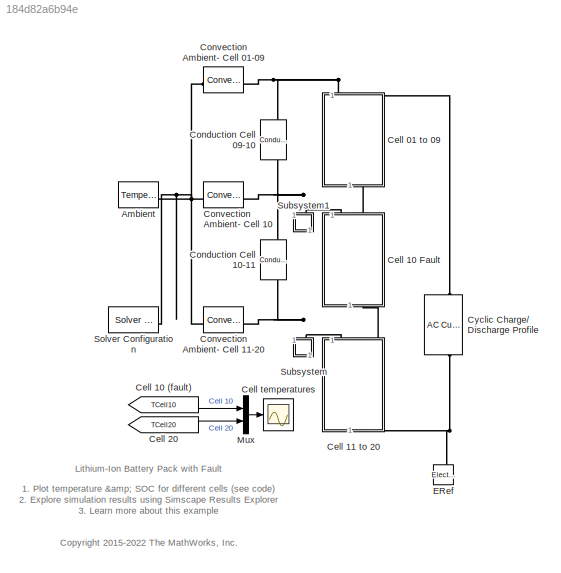
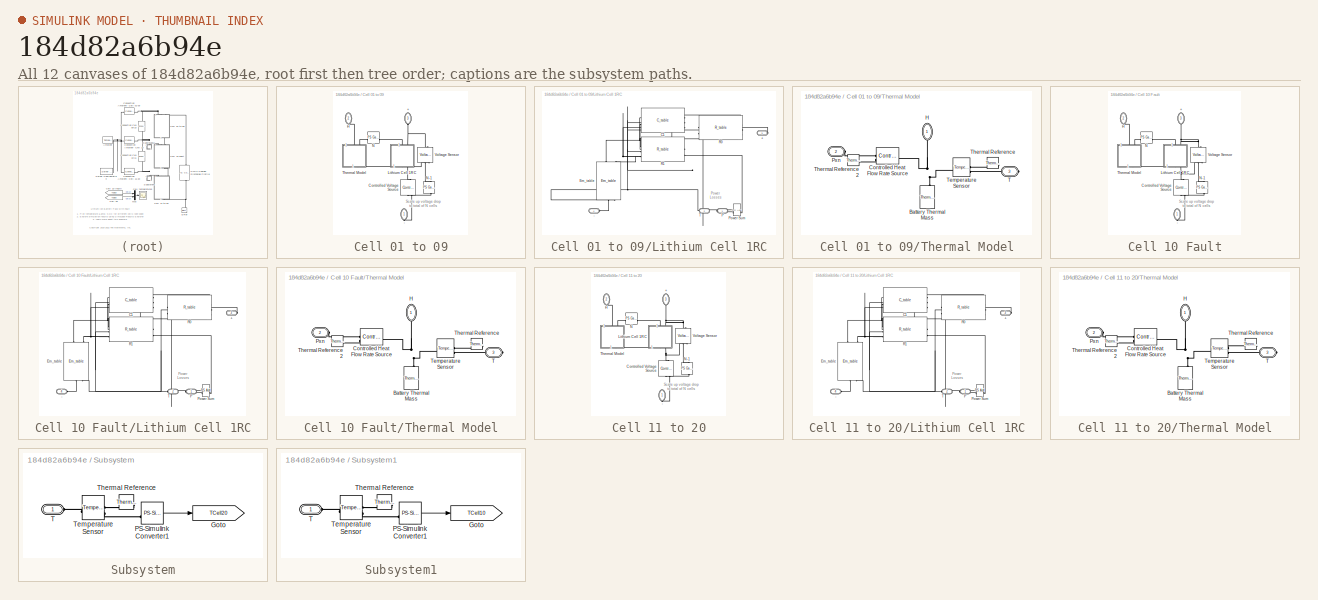
[diagram: thumbnail index - all 12 canvases of the model, root first then tree order]
MODEL slx_184d82a6b94e
KIND model
CONFIG AbsTol = 1e-3
CONFIG EnableMultiTasking = on
CONFIG FixedStep = auto
CONFIG MaxStep = 10
CONFIG MinStep = auto
CONFIG PreLoadFcn = LithiumBatteryCellOneRCBranchEquivalentCircuitINI
CONFIG RelTol = 1e-3
CONFIG SampleTimeConstraint = Unconstrained
CONFIG SolverName = VariableStepAuto
CONFIG StartTime = 0.0
CONFIG StopTime = 7200
BLOCK [Reference] Ambient  REF=fl_lib/Thermal/Thermal Sources/Temperature Source
  SourceBlock = fl_lib/Thermal/Thermal Sources/Temperature Source
  SourceType = Temperature Source
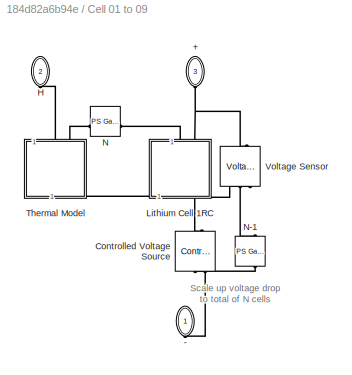
BLOCK [SubSystem] Cell 01 to 09
  NameLocation = right
  Tag = PublishSubsystem
BLOCK [PMIOPort] Cell 01 to 09/+
  NameLocation = left
  Port = 3
  Side = Left
  Tag = PMCPort
BLOCK [PMIOPort] Cell 01 to 09/-
  NameLocation = left
  Side = Right
  Tag = PMCPort
BLOCK [Reference] Cell 01 to 09/Controlled Voltage Source  REF=fl_lib/Electrical/Electrical Sources/Controlled Voltage
Source
  NameLocation = left
  SourceBlock = fl_lib/Electrical/Electrical Sources/Controlled Voltage\nSource
  SourceType = Controlled Voltage\nSource
BLOCK [PMIOPort] Cell 01 to 09/H
  NameLocation = left
  Port = 2
  Side = Left
  Tag = PMCPort
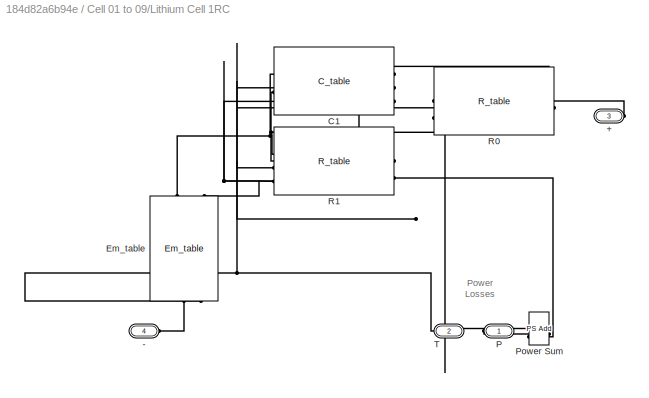
BLOCK [SubSystem] Cell 01 to 09/Lithium Cell 1RC
  NameLocation = left
  Tag = PublishSubsystem
BLOCK [PMIOPort] Cell 01 to 09/Lithium Cell 1RC/+
  Port = 3
  Side = Right
BLOCK [PMIOPort] Cell 01 to 09/Lithium Cell 1RC/-
  NameLocation = top
  Port = 4
  Side = Left
BLOCK [Reference] Cell 01 to 09/Lithium Cell 1RC/C1  REF=LiBatteryElements_lib/C_table
  NameLocation = top
  SourceBlock = LiBatteryElements_lib/C_table
  SourceType = C_table
BLOCK [Reference] Cell 01 to 09/Lithium Cell 1RC/Em_table  REF=LiBatteryElements_lib/Em_table
  NameLocation = right
  SourceBlock = LiBatteryElements_lib/Em_table
  SourceType = Em_table
BLOCK [PMIOPort] Cell 01 to 09/Lithium Cell 1RC/P
  Side = Right
BLOCK [Reference] Cell 01 to 09/Lithium Cell 1RC/Power Sum  REF=fl_lib/Physical Signals/Functions/PS Add
  NameLocation = top
  SourceBlock = fl_lib/Physical Signals/Functions/PS Add
  SourceType = PS Add
BLOCK [Reference] Cell 01 to 09/Lithium Cell 1RC/R0  REF=LiBatteryElements_lib/R_table
  SourceBlock = LiBatteryElements_lib/R_table
  SourceType = R_table
BLOCK [Reference] Cell 01 to 09/Lithium Cell 1RC/R1  REF=LiBatteryElements_lib/R_table
  SourceBlock = LiBatteryElements_lib/R_table
  SourceType = R_table
BLOCK [PMIOPort] Cell 01 to 09/Lithium Cell 1RC/T
  Port = 2
  Side = Left
BLOCK [Reference] Cell 01 to 09/N  REF=fl_lib/Physical Signals/Functions/PS Gain
  NameLocation = top
  SourceBlock = fl_lib/Physical Signals/Functions/PS Gain
  SourceType = PS Gain
BLOCK [Reference] Cell 01 to 09/N-1  REF=fl_lib/Physical Signals/Functions/PS Gain
  NameLocation = right
  SourceBlock = fl_lib/Physical Signals/Functions/PS Gain
  SourceType = PS Gain
BLOCK [SubSystem] Cell 01 to 09/Thermal Model
  NameLocation = left
BLOCK [Reference] Cell 01 to 09/Thermal Model/Battery Thermal Mass  REF=fl_lib/Thermal/Thermal Elements/Thermal Mass
  NameLocation = right
  SourceBlock = fl_lib/Thermal/Thermal Elements/Thermal Mass
  SourceType = Thermal Mass
BLOCK [Reference] Cell 01 to 09/Thermal Model/Controlled Heat Flow Rate Source  REF=fl_lib/Thermal/Thermal Sources/Controlled Heat Flow
Rate Source
  SourceBlock = fl_lib/Thermal/Thermal Sources/Controlled Heat Flow\nRate Source
  SourceType = Controlled Heat Flow\nRate Source
BLOCK [PMIOPort] Cell 01 to 09/Thermal Model/H
  NameLocation = left
  Side = Left
  Tag = PMCPort
BLOCK [PMIOPort] Cell 01 to 09/Thermal Model/Pxn
  NameLocation = top
  Port = 2
  Side = Left
  Tag = PMCPort
BLOCK [PMIOPort] Cell 01 to 09/Thermal Model/T
  Port = 3
  Side = Right
  Tag = PMCPort
BLOCK [Reference] Cell 01 to 09/Thermal Model/Temperature Sensor  REF=fl_lib/Thermal/Thermal Sensors/Temperature Sensor
  SourceBlock = fl_lib/Thermal/Thermal Sensors/Temperature Sensor
  SourceType = Temperature Sensor
BLOCK [Reference] Cell 01 to 09/Thermal Model/Thermal Reference  REF=fl_lib/Thermal/Thermal Elements/Thermal Reference
  NameLocation = top
  SourceBlock = fl_lib/Thermal/Thermal Elements/Thermal Reference
  SourceType = Thermal Reference
BLOCK [Reference] Cell 01 to 09/Thermal Model/Thermal Reference2  REF=fl_lib/Thermal/Thermal Elements/Thermal Reference
  SourceBlock = fl_lib/Thermal/Thermal Elements/Thermal Reference
  SourceType = Thermal Reference
BLOCK [Reference] Cell 01 to 09/Voltage Sensor  REF=fl_lib/Electrical/Electrical Sensors/Voltage Sensor
  NameLocation = right
  SourceBlock = fl_lib/Electrical/Electrical Sensors/Voltage Sensor
  SourceType = Voltage Sensor
BLOCK [From] Cell 10 (fault)
  GotoTag = TCell10
  NameLocation = top
  TagVisibility = global
BLOCK [SubSystem] Cell 10 Fault
  NameLocation = right
BLOCK [PMIOPort] Cell 10 Fault/+
  NameLocation = left
  Port = 3
  Side = Left
  Tag = PMCPort
BLOCK [PMIOPort] Cell 10 Fault/-
  NameLocation = left
  Side = Right
  Tag = PMCPort
BLOCK [Reference] Cell 10 Fault/Controlled Voltage Source  REF=fl_lib/Electrical/Electrical Sources/Controlled Voltage
Source
  NameLocation = left
  SourceBlock = fl_lib/Electrical/Electrical Sources/Controlled Voltage\nSource
  SourceType = Controlled Voltage\nSource
BLOCK [PMIOPort] Cell 10 Fault/H
  NameLocation = left
  Port = 2
  Side = Left
  Tag = PMCPort
BLOCK [SubSystem] Cell 10 Fault/Lithium Cell 1RC
  NameLocation = left
BLOCK [PMIOPort] Cell 10 Fault/Lithium Cell 1RC/+
  Port = 3
  Side = Right
BLOCK [PMIOPort] Cell 10 Fault/Lithium Cell 1RC/-
  NameLocation = top
  Port = 4
  Side = Left
BLOCK [Reference] Cell 10 Fault/Lithium Cell 1RC/C1  REF=LiBatteryElements_lib/C_table
  NameLocation = top
  SourceBlock = LiBatteryElements_lib/C_table
  SourceType = C_table
BLOCK [Reference] Cell 10 Fault/Lithium Cell 1RC/Em_table  REF=LiBatteryElements_lib/Em_table
  NameLocation = right
  SourceBlock = LiBatteryElements_lib/Em_table
  SourceType = Em_table
BLOCK [PMIOPort] Cell 10 Fault/Lithium Cell 1RC/P
  Side = Right
BLOCK [Reference] Cell 10 Fault/Lithium Cell 1RC/Power Sum  REF=fl_lib/Physical Signals/Functions/PS Add
  NameLocation = top
  SourceBlock = fl_lib/Physical Signals/Functions/PS Add
  SourceType = PS Add
BLOCK [Reference] Cell 10 Fault/Lithium Cell 1RC/R0  REF=LiBatteryElements_lib/R_table
  SourceBlock = LiBatteryElements_lib/R_table
  SourceType = R_table
BLOCK [Reference] Cell 10 Fault/Lithium Cell 1RC/R1  REF=LiBatteryElements_lib/R_table
  SourceBlock = LiBatteryElements_lib/R_table
  SourceType = R_table
BLOCK [PMIOPort] Cell 10 Fault/Lithium Cell 1RC/T
  Port = 2
  Side = Left
BLOCK [Reference] Cell 10 Fault/N  REF=fl_lib/Physical Signals/Functions/PS Gain
  NameLocation = top
  SourceBlock = fl_lib/Physical Signals/Functions/PS Gain
  SourceType = PS Gain
BLOCK [Reference] Cell 10 Fault/N-1  REF=fl_lib/Physical Signals/Functions/PS Gain
  NameLocation = right
  SourceBlock = fl_lib/Physical Signals/Functions/PS Gain
  SourceType = PS Gain
BLOCK [SubSystem] Cell 10 Fault/Thermal Model
  NameLocation = left
BLOCK [Reference] Cell 10 Fault/Thermal Model/Battery Thermal Mass  REF=fl_lib/Thermal/Thermal Elements/Thermal Mass
  NameLocation = right
  SourceBlock = fl_lib/Thermal/Thermal Elements/Thermal Mass
  SourceType = Thermal Mass
BLOCK [Reference] Cell 10 Fault/Thermal Model/Controlled Heat Flow Rate Source  REF=fl_lib/Thermal/Thermal Sources/Controlled Heat Flow
Rate Source
  SourceBlock = fl_lib/Thermal/Thermal Sources/Controlled Heat Flow\nRate Source
  SourceType = Controlled Heat Flow\nRate Source
BLOCK [PMIOPort] Cell 10 Fault/Thermal Model/H
  NameLocation = left
  Side = Left
  Tag = PMCPort
BLOCK [PMIOPort] Cell 10 Fault/Thermal Model/Pxn
  NameLocation = top
  Port = 2
  Side = Left
  Tag = PMCPort
BLOCK [PMIOPort] Cell 10 Fault/Thermal Model/T
  Port = 3
  Side = Right
  Tag = PMCPort
BLOCK [Reference] Cell 10 Fault/Thermal Model/Temperature Sensor  REF=fl_lib/Thermal/Thermal Sensors/Temperature Sensor
  SourceBlock = fl_lib/Thermal/Thermal Sensors/Temperature Sensor
  SourceType = Temperature Sensor
BLOCK [Reference] Cell 10 Fault/Thermal Model/Thermal Reference  REF=fl_lib/Thermal/Thermal Elements/Thermal Reference
  NameLocation = top
  SourceBlock = fl_lib/Thermal/Thermal Elements/Thermal Reference
  SourceType = Thermal Reference
BLOCK [Reference] Cell 10 Fault/Thermal Model/Thermal Reference2  REF=fl_lib/Thermal/Thermal Elements/Thermal Reference
  SourceBlock = fl_lib/Thermal/Thermal Elements/Thermal Reference
  SourceType = Thermal Reference
BLOCK [Reference] Cell 10 Fault/Voltage Sensor  REF=fl_lib/Electrical/Electrical Sensors/Voltage Sensor
  NameLocation = right
  SourceBlock = fl_lib/Electrical/Electrical Sensors/Voltage Sensor
  SourceType = Voltage Sensor
BLOCK [SubSystem] Cell 11 to 20
  NameLocation = right
BLOCK [PMIOPort] Cell 11 to 20/+
  NameLocation = left
  Port = 3
  Side = Left
  Tag = PMCPort
BLOCK [PMIOPort] Cell 11 to 20/-
  NameLocation = left
  Side = Right
  Tag = PMCPort
BLOCK [Reference] Cell 11 to 20/Controlled Voltage Source  REF=fl_lib/Electrical/Electrical Sources/Controlled Voltage
Source
  NameLocation = left
  SourceBlock = fl_lib/Electrical/Electrical Sources/Controlled Voltage\nSource
  SourceType = Controlled Voltage\nSource
BLOCK [PMIOPort] Cell 11 to 20/H
  NameLocation = left
  Port = 2
  Side = Left
  Tag = PMCPort
BLOCK [SubSystem] Cell 11 to 20/Lithium Cell 1RC
  NameLocation = left
BLOCK [PMIOPort] Cell 11 to 20/Lithium Cell 1RC/+
  Port = 3
  Side = Right
BLOCK [PMIOPort] Cell 11 to 20/Lithium Cell 1RC/-
  NameLocation = top
  Port = 4
  Side = Left
BLOCK [Reference] Cell 11 to 20/Lithium Cell 1RC/C1  REF=LiBatteryElements_lib/C_table
  NameLocation = top
  SourceBlock = LiBatteryElements_lib/C_table
  SourceType = C_table
BLOCK [Reference] Cell 11 to 20/Lithium Cell 1RC/Em_table  REF=LiBatteryElements_lib/Em_table
  NameLocation = right
  SourceBlock = LiBatteryElements_lib/Em_table
  SourceType = Em_table
BLOCK [PMIOPort] Cell 11 to 20/Lithium Cell 1RC/P
  Side = Right
BLOCK [Reference] Cell 11 to 20/Lithium Cell 1RC/Power Sum  REF=fl_lib/Physical Signals/Functions/PS Add
  NameLocation = top
  SourceBlock = fl_lib/Physical Signals/Functions/PS Add
  SourceType = PS Add
BLOCK [Reference] Cell 11 to 20/Lithium Cell 1RC/R0  REF=LiBatteryElements_lib/R_table
  SourceBlock = LiBatteryElements_lib/R_table
  SourceType = R_table
BLOCK [Reference] Cell 11 to 20/Lithium Cell 1RC/R1  REF=LiBatteryElements_lib/R_table
  SourceBlock = LiBatteryElements_lib/R_table
  SourceType = R_table
BLOCK [PMIOPort] Cell 11 to 20/Lithium Cell 1RC/T
  Port = 2
  Side = Left
BLOCK [Reference] Cell 11 to 20/N  REF=fl_lib/Physical Signals/Functions/PS Gain
  NameLocation = top
  SourceBlock = fl_lib/Physical Signals/Functions/PS Gain
  SourceType = PS Gain
BLOCK [Reference] Cell 11 to 20/N-1  REF=fl_lib/Physical Signals/Functions/PS Gain
  NameLocation = right
  SourceBlock = fl_lib/Physical Signals/Functions/PS Gain
  SourceType = PS Gain
BLOCK [SubSystem] Cell 11 to 20/Thermal Model
  NameLocation = left
BLOCK [Reference] Cell 11 to 20/Thermal Model/Battery Thermal Mass  REF=fl_lib/Thermal/Thermal Elements/Thermal Mass
  NameLocation = right
  SourceBlock = fl_lib/Thermal/Thermal Elements/Thermal Mass
  SourceType = Thermal Mass
BLOCK [Reference] Cell 11 to 20/Thermal Model/Controlled Heat Flow Rate Source  REF=fl_lib/Thermal/Thermal Sources/Controlled Heat Flow
Rate Source
  SourceBlock = fl_lib/Thermal/Thermal Sources/Controlled Heat Flow\nRate Source
  SourceType = Controlled Heat Flow\nRate Source
BLOCK [PMIOPort] Cell 11 to 20/Thermal Model/H
  NameLocation = left
  Side = Left
  Tag = PMCPort
BLOCK [PMIOPort] Cell 11 to 20/Thermal Model/Pxn
  NameLocation = top
  Port = 2
  Side = Left
  Tag = PMCPort
BLOCK [PMIOPort] Cell 11 to 20/Thermal Model/T
  Port = 3
  Side = Right
  Tag = PMCPort
BLOCK [Reference] Cell 11 to 20/Thermal Model/Temperature Sensor  REF=fl_lib/Thermal/Thermal Sensors/Temperature Sensor
  SourceBlock = fl_lib/Thermal/Thermal Sensors/Temperature Sensor
  SourceType = Temperature Sensor
BLOCK [Reference] Cell 11 to 20/Thermal Model/Thermal Reference  REF=fl_lib/Thermal/Thermal Elements/Thermal Reference
  NameLocation = top
  SourceBlock = fl_lib/Thermal/Thermal Elements/Thermal Reference
  SourceType = Thermal Reference
BLOCK [Reference] Cell 11 to 20/Thermal Model/Thermal Reference2  REF=fl_lib/Thermal/Thermal Elements/Thermal Reference
  SourceBlock = fl_lib/Thermal/Thermal Elements/Thermal Reference
  SourceType = Thermal Reference
BLOCK [Reference] Cell 11 to 20/Voltage Sensor  REF=fl_lib/Electrical/Electrical Sensors/Voltage Sensor
  NameLocation = right
  SourceBlock = fl_lib/Electrical/Electrical Sensors/Voltage Sensor
  SourceType = Voltage Sensor
BLOCK [From] Cell 20
  GotoTag = TCell20
  TagVisibility = global
BLOCK [Scope] Cell temperatures
  Floating = off
  NumInputPorts = 1
  ScopeSpecificationString = Simulink.scopes.TimeScopeBlockCfg('CurrentConfiguration', extmgr.ConfigurationSet(extmgr.Configuration('Core','General UI',true,'FigureColor',[0.501960784313725 0.501960784313725 0.501960784313725]),extmgr.Configuration('Core','Source UI',true),extmgr.Configuration('Sources','WiredSimulink',true,'DataLoggingSaveFormat','Array','DataLoggingLimitDataPoints',true,'DataLoggingDecimation','1'),extmgr.C...<+2577ch>
BLOCK [Reference] Conduction Cell 09-10  REF=fl_lib/Thermal/Thermal Elements/Conductive Heat
Transfer
  NameLocation = left
  SourceBlock = fl_lib/Thermal/Thermal Elements/Conductive Heat\nTransfer
  SourceType = Conductive Heat\nTransfer
BLOCK [Reference] Conduction Cell 10-11   REF=fl_lib/Thermal/Thermal Elements/Conductive Heat
Transfer
  NameLocation = left
  SourceBlock = fl_lib/Thermal/Thermal Elements/Conductive Heat\nTransfer
  SourceType = Conductive Heat\nTransfer
BLOCK [Reference] Convection Ambient- Cell 01-09  REF=fl_lib/Thermal/Thermal Elements/Convective Heat
Transfer
  SourceBlock = fl_lib/Thermal/Thermal Elements/Convective Heat\nTransfer
  SourceType = Convective Heat\nTransfer
BLOCK [Reference] Convection Ambient- Cell 10  REF=fl_lib/Thermal/Thermal Elements/Convective Heat
Transfer
  SourceBlock = fl_lib/Thermal/Thermal Elements/Convective Heat\nTransfer
  SourceType = Convective Heat\nTransfer
BLOCK [Reference] Convection Ambient- Cell 11-20  REF=fl_lib/Thermal/Thermal Elements/Convective Heat
Transfer
  SourceBlock = fl_lib/Thermal/Thermal Elements/Convective Heat\nTransfer
  SourceType = Convective Heat\nTransfer
BLOCK [Reference] Cyclic Charge// Discharge Profile  REF=fl_lib/Electrical/Electrical Sources/AC Current Source
  NameLocation = right
  SourceBlock = fl_lib/Electrical/Electrical Sources/AC Current Source
  SourceType = AC Current Source
BLOCK [Reference] ERef   REF=fl_lib/Electrical/Electrical Elements/Electrical Reference
  NameLocation = left
  SourceBlock = fl_lib/Electrical/Electrical Elements/Electrical Reference
  SourceType = Electrical Reference
BLOCK [Mux] Mux
  DisplayOption = bar
  Inputs = 2
BLOCK [Reference] Solver Configuration  REF=nesl_utility/Solver
Configuration
  SourceBlock = nesl_utility/Solver\nConfiguration
  SourceType = Solver\nConfiguration
BLOCK [SubSystem] Subsystem
  NameLocation = left
BLOCK [Goto] Subsystem/Goto
  GotoTag = TCell20
  TagVisibility = global
BLOCK [Reference] Subsystem/PS-Simulink Converter1  REF=nesl_utility/PS-Simulink
Converter
  SourceBlock = nesl_utility/PS-Simulink\nConverter
  SourceType = PS-Simulink\nConverter
BLOCK [PMIOPort] Subsystem/T
  Side = Left
BLOCK [Reference] Subsystem/Temperature Sensor  REF=fl_lib/Thermal/Thermal Sensors/Temperature Sensor
  SourceBlock = fl_lib/Thermal/Thermal Sensors/Temperature Sensor
  SourceType = Temperature Sensor
BLOCK [Reference] Subsystem/Thermal Reference  REF=fl_lib/Thermal/Thermal Elements/Thermal Reference
  NameLocation = top
  SourceBlock = fl_lib/Thermal/Thermal Elements/Thermal Reference
  SourceType = Thermal Reference
BLOCK [SubSystem] Subsystem1
  NameLocation = left
BLOCK [Goto] Subsystem1/Goto
  GotoTag = TCell10
  TagVisibility = global
BLOCK [Reference] Subsystem1/PS-Simulink Converter1  REF=nesl_utility/PS-Simulink
Converter
  SourceBlock = nesl_utility/PS-Simulink\nConverter
  SourceType = PS-Simulink\nConverter
BLOCK [PMIOPort] Subsystem1/T
  Side = Left
BLOCK [Reference] Subsystem1/Temperature Sensor  REF=fl_lib/Thermal/Thermal Sensors/Temperature Sensor
  SourceBlock = fl_lib/Thermal/Thermal Sensors/Temperature Sensor
  SourceType = Temperature Sensor
BLOCK [Reference] Subsystem1/Thermal Reference  REF=fl_lib/Thermal/Thermal Elements/Thermal Reference
  NameLocation = top
  SourceBlock = fl_lib/Thermal/Thermal Elements/Thermal Reference
  SourceType = Thermal Reference
ANNOTATION (root): 1. Plot temperature & SOC for different cells ( see code ) 2. Explore simulation results using Simscape Results Explorer 3. Learn more about this example
ANNOTATION (root): Lithium-Ion Battery Pack with Fault
ANNOTATION (root): <copyright redacted>
ANNOTATION Cell 01 to 09: Scale up voltage drop to total of N cells
ANNOTATION Cell 01 to 09/Lithium Cell 1RC: Power Losses
ANNOTATION Cell 10 Fault: Scale up voltage drop to total of N cells
ANNOTATION Cell 10 Fault/Lithium Cell 1RC: Power Losses
ANNOTATION Cell 11 to 20: Scale up voltage drop to total of N cells
ANNOTATION Cell 11 to 20/Lithium Cell 1RC: Power Losses
LINE Cell 10 (fault):1 -> Mux:1
LINE Cell 20:1 -> Mux:2
LINE Mux:1 -> Cell temperatures:1
LINE Subsystem/PS-Simulink Converter1:1 -> Subsystem/Goto:1
LINE Subsystem1/PS-Simulink Converter1:1 -> Subsystem1/Goto:1
PNET net1: Ambient:LConn1 -- Convection Ambient- Cell 01-09:LConn1 -- Convection Ambient- Cell 10:LConn1 -- Convection Ambient- Cell 11-20:LConn1 -- Solver Configuration:RConn1
PNET net2: Cell 01 to 09/+:RConn1 -- Cell 01 to 09/Lithium Cell 1RC:RConn2 -- Cell 01 to 09/Voltage Sensor:LConn1
PLINE Cell 01 to 09/-:RConn1 -- Cell 01 to 09/Controlled Voltage Source:RConn2
PNET net3: Cell 01 to 09/Controlled Voltage Source:LConn1 -- Cell 01 to 09/Lithium Cell 1RC:LConn2 -- Cell 01 to 09/Voltage Sensor:RConn2
PLINE Cell 01 to 09/Controlled Voltage Source:RConn1 -- Cell 01 to 09/N-1:RConn1
PLINE Cell 01 to 09/H:RConn1 -- Cell 01 to 09/Thermal Model:LConn1
PLINE Cell 01 to 09/Lithium Cell 1RC/+:RConn1 -- Cell 01 to 09/Lithium Cell 1RC/R0:RConn1
PLINE Cell 01 to 09/Lithium Cell 1RC/-:RConn1 -- Cell 01 to 09/Lithium Cell 1RC/Em_table:RConn1
PNET net4: Cell 01 to 09/Lithium Cell 1RC/C1:LConn1 -- Cell 01 to 09/Lithium Cell 1RC/Em_table:LConn1 -- Cell 01 to 09/Lithium Cell 1RC/R1:LConn1
PNET net5: Cell 01 to 09/Lithium Cell 1RC/C1:LConn2 -- Cell 01 to 09/Lithium Cell 1RC/Em_table:RConn2 -- Cell 01 to 09/Lithium Cell 1RC/R0:LConn2 -- Cell 01 to 09/Lithium Cell 1RC/R1:LConn2 -- Cell 01 to 09/Lithium Cell 1RC/T:RConn1
PNET net6: Cell 01 to 09/Lithium Cell 1RC/C1:LConn3 -- Cell 01 to 09/Lithium Cell 1RC/Em_table:LConn3 -- Cell 01 to 09/Lithium Cell 1RC/R0:LConn3 -- Cell 01 to 09/Lithium Cell 1RC/R1:LConn3
PNET net7: Cell 01 to 09/Lithium Cell 1RC/C1:RConn1 -- Cell 01 to 09/Lithium Cell 1RC/R0:LConn1 -- Cell 01 to 09/Lithium Cell 1RC/R1:RConn1
PLINE Cell 01 to 09/Lithium Cell 1RC/P:RConn1 -- Cell 01 to 09/Lithium Cell 1RC/Power Sum:RConn1
PLINE Cell 01 to 09/Lithium Cell 1RC/Power Sum:LConn1 -- Cell 01 to 09/Lithium Cell 1RC/R0:RConn2
PLINE Cell 01 to 09/Lithium Cell 1RC/Power Sum:LConn2 -- Cell 01 to 09/Lithium Cell 1RC/R1:RConn2
PLINE Cell 01 to 09/Lithium Cell 1RC:LConn1 -- Cell 01 to 09/Thermal Model:RConn1
PLINE Cell 01 to 09/Lithium Cell 1RC:RConn1 -- Cell 01 to 09/N:LConn1
PLINE Cell 01 to 09/N-1:LConn1 -- Cell 01 to 09/Voltage Sensor:RConn1
PLINE Cell 01 to 09/N:RConn1 -- Cell 01 to 09/Thermal Model:LConn2
PNET net8: Cell 01 to 09/Thermal Model/Battery Thermal Mass:LConn1 -- Cell 01 to 09/Thermal Model/Controlled Heat Flow Rate Source:LConn1 -- Cell 01 to 09/Thermal Model/H:RConn1 -- Cell 01 to 09/Thermal Model/Temperature Sensor:LConn1
PLINE Cell 01 to 09/Thermal Model/Controlled Heat Flow Rate Source:RConn1 -- Cell 01 to 09/Thermal Model/Pxn:RConn1
PLINE Cell 01 to 09/Thermal Model/Controlled Heat Flow Rate Source:RConn2 -- Cell 01 to 09/Thermal Model/Thermal Reference2:LConn1
PLINE Cell 01 to 09/Thermal Model/T:RConn1 -- Cell 01 to 09/Thermal Model/Temperature Sensor:RConn2
PLINE Cell 01 to 09/Thermal Model/Temperature Sensor:RConn1 -- Cell 01 to 09/Thermal Model/Thermal Reference:LConn1
PNET net9: Cell 01 to 09:LConn1 -- Conduction Cell 09-10:LConn1 -- Convection Ambient- Cell 01-09:RConn1
PLINE Cell 01 to 09:LConn2 -- Cyclic Charge// Discharge Profile:LConn1
PLINE Cell 01 to 09:RConn1 -- Cell 10 Fault:LConn2
PNET net10: Cell 10 Fault/+:RConn1 -- Cell 10 Fault/Lithium Cell 1RC:RConn2 -- Cell 10 Fault/Voltage Sensor:LConn1
PLINE Cell 10 Fault/-:RConn1 -- Cell 10 Fault/Controlled Voltage Source:RConn2
PNET net11: Cell 10 Fault/Controlled Voltage Source:LConn1 -- Cell 10 Fault/Lithium Cell 1RC:LConn2 -- Cell 10 Fault/Voltage Sensor:RConn2
PLINE Cell 10 Fault/Controlled Voltage Source:RConn1 -- Cell 10 Fault/N-1:RConn1
PLINE Cell 10 Fault/H:RConn1 -- Cell 10 Fault/Thermal Model:LConn1
PLINE Cell 10 Fault/Lithium Cell 1RC/+:RConn1 -- Cell 10 Fault/Lithium Cell 1RC/R0:RConn1
PLINE Cell 10 Fault/Lithium Cell 1RC/-:RConn1 -- Cell 10 Fault/Lithium Cell 1RC/Em_table:RConn1
PNET net12: Cell 10 Fault/Lithium Cell 1RC/C1:LConn1 -- Cell 10 Fault/Lithium Cell 1RC/Em_table:LConn1 -- Cell 10 Fault/Lithium Cell 1RC/R1:LConn1
PNET net13: Cell 10 Fault/Lithium Cell 1RC/C1:LConn2 -- Cell 10 Fault/Lithium Cell 1RC/Em_table:RConn2 -- Cell 10 Fault/Lithium Cell 1RC/R0:LConn2 -- Cell 10 Fault/Lithium Cell 1RC/R1:LConn2 -- Cell 10 Fault/Lithium Cell 1RC/T:RConn1
PNET net14: Cell 10 Fault/Lithium Cell 1RC/C1:LConn3 -- Cell 10 Fault/Lithium Cell 1RC/Em_table:LConn3 -- Cell 10 Fault/Lithium Cell 1RC/R0:LConn3 -- Cell 10 Fault/Lithium Cell 1RC/R1:LConn3
PNET net15: Cell 10 Fault/Lithium Cell 1RC/C1:RConn1 -- Cell 10 Fault/Lithium Cell 1RC/R0:LConn1 -- Cell 10 Fault/Lithium Cell 1RC/R1:RConn1
PLINE Cell 10 Fault/Lithium Cell 1RC/P:RConn1 -- Cell 10 Fault/Lithium Cell 1RC/Power Sum:RConn1
PLINE Cell 10 Fault/Lithium Cell 1RC/Power Sum:LConn1 -- Cell 10 Fault/Lithium Cell 1RC/R0:RConn2
PLINE Cell 10 Fault/Lithium Cell 1RC/Power Sum:LConn2 -- Cell 10 Fault/Lithium Cell 1RC/R1:RConn2
PLINE Cell 10 Fault/Lithium Cell 1RC:LConn1 -- Cell 10 Fault/Thermal Model:RConn1
PLINE Cell 10 Fault/Lithium Cell 1RC:RConn1 -- Cell 10 Fault/N:LConn1
PLINE Cell 10 Fault/N-1:LConn1 -- Cell 10 Fault/Voltage Sensor:RConn1
PLINE Cell 10 Fault/N:RConn1 -- Cell 10 Fault/Thermal Model:LConn2
PNET net16: Cell 10 Fault/Thermal Model/Battery Thermal Mass:LConn1 -- Cell 10 Fault/Thermal Model/Controlled Heat Flow Rate Source:LConn1 -- Cell 10 Fault/Thermal Model/H:RConn1 -- Cell 10 Fault/Thermal Model/Temperature Sensor:LConn1
PLINE Cell 10 Fault/Thermal Model/Controlled Heat Flow Rate Source:RConn1 -- Cell 10 Fault/Thermal Model/Pxn:RConn1
PLINE Cell 10 Fault/Thermal Model/Controlled Heat Flow Rate Source:RConn2 -- Cell 10 Fault/Thermal Model/Thermal Reference2:LConn1
PLINE Cell 10 Fault/Thermal Model/T:RConn1 -- Cell 10 Fault/Thermal Model/Temperature Sensor:RConn2
PLINE Cell 10 Fault/Thermal Model/Temperature Sensor:RConn1 -- Cell 10 Fault/Thermal Model/Thermal Reference:LConn1
PNET net17: Cell 10 Fault:LConn1 -- Conduction Cell 09-10:RConn1 -- Conduction Cell 10-11 :LConn1 -- Convection Ambient- Cell 10:RConn1 -- Subsystem1:LConn1
PLINE Cell 10 Fault:RConn1 -- Cell 11 to 20:LConn2
PNET net18: Cell 11 to 20/+:RConn1 -- Cell 11 to 20/Lithium Cell 1RC:RConn2 -- Cell 11 to 20/Voltage Sensor:LConn1
PLINE Cell 11 to 20/-:RConn1 -- Cell 11 to 20/Controlled Voltage Source:RConn2
PNET net19: Cell 11 to 20/Controlled Voltage Source:LConn1 -- Cell 11 to 20/Lithium Cell 1RC:LConn2 -- Cell 11 to 20/Voltage Sensor:RConn2
PLINE Cell 11 to 20/Controlled Voltage Source:RConn1 -- Cell 11 to 20/N-1:RConn1
PLINE Cell 11 to 20/H:RConn1 -- Cell 11 to 20/Thermal Model:LConn1
PLINE Cell 11 to 20/Lithium Cell 1RC/+:RConn1 -- Cell 11 to 20/Lithium Cell 1RC/R0:RConn1
PLINE Cell 11 to 20/Lithium Cell 1RC/-:RConn1 -- Cell 11 to 20/Lithium Cell 1RC/Em_table:RConn1
PNET net20: Cell 11 to 20/Lithium Cell 1RC/C1:LConn1 -- Cell 11 to 20/Lithium Cell 1RC/Em_table:LConn1 -- Cell 11 to 20/Lithium Cell 1RC/R1:LConn1
PNET net21: Cell 11 to 20/Lithium Cell 1RC/C1:LConn2 -- Cell 11 to 20/Lithium Cell 1RC/Em_table:RConn2 -- Cell 11 to 20/Lithium Cell 1RC/R0:LConn2 -- Cell 11 to 20/Lithium Cell 1RC/R1:LConn2 -- Cell 11 to 20/Lithium Cell 1RC/T:RConn1
PNET net22: Cell 11 to 20/Lithium Cell 1RC/C1:LConn3 -- Cell 11 to 20/Lithium Cell 1RC/Em_table:LConn3 -- Cell 11 to 20/Lithium Cell 1RC/R0:LConn3 -- Cell 11 to 20/Lithium Cell 1RC/R1:LConn3
PNET net23: Cell 11 to 20/Lithium Cell 1RC/C1:RConn1 -- Cell 11 to 20/Lithium Cell 1RC/R0:LConn1 -- Cell 11 to 20/Lithium Cell 1RC/R1:RConn1
PLINE Cell 11 to 20/Lithium Cell 1RC/P:RConn1 -- Cell 11 to 20/Lithium Cell 1RC/Power Sum:RConn1
PLINE Cell 11 to 20/Lithium Cell 1RC/Power Sum:LConn1 -- Cell 11 to 20/Lithium Cell 1RC/R0:RConn2
PLINE Cell 11 to 20/Lithium Cell 1RC/Power Sum:LConn2 -- Cell 11 to 20/Lithium Cell 1RC/R1:RConn2
PLINE Cell 11 to 20/Lithium Cell 1RC:LConn1 -- Cell 11 to 20/Thermal Model:RConn1
PLINE Cell 11 to 20/Lithium Cell 1RC:RConn1 -- Cell 11 to 20/N:LConn1
PLINE Cell 11 to 20/N-1:LConn1 -- Cell 11 to 20/Voltage Sensor:RConn1
PLINE Cell 11 to 20/N:RConn1 -- Cell 11 to 20/Thermal Model:LConn2
PNET net24: Cell 11 to 20/Thermal Model/Battery Thermal Mass:LConn1 -- Cell 11 to 20/Thermal Model/Controlled Heat Flow Rate Source:LConn1 -- Cell 11 to 20/Thermal Model/H:RConn1 -- Cell 11 to 20/Thermal Model/Temperature Sensor:LConn1
PLINE Cell 11 to 20/Thermal Model/Controlled Heat Flow Rate Source:RConn1 -- Cell 11 to 20/Thermal Model/Pxn:RConn1
PLINE Cell 11 to 20/Thermal Model/Controlled Heat Flow Rate Source:RConn2 -- Cell 11 to 20/Thermal Model/Thermal Reference2:LConn1
PLINE Cell 11 to 20/Thermal Model/T:RConn1 -- Cell 11 to 20/Thermal Model/Temperature Sensor:RConn2
PLINE Cell 11 to 20/Thermal Model/Temperature Sensor:RConn1 -- Cell 11 to 20/Thermal Model/Thermal Reference:LConn1
PNET net25: Cell 11 to 20:LConn1 -- Conduction Cell 10-11 :RConn1 -- Convection Ambient- Cell 11-20:RConn1 -- Subsystem:LConn1
PNET net26: Cell 11 to 20:RConn1 -- Cyclic Charge// Discharge Profile:RConn1 -- ERef :LConn1
PLINE Subsystem/PS-Simulink Converter1:LConn1 -- Subsystem/Temperature Sensor:RConn2
PLINE Subsystem/T:RConn1 -- Subsystem/Temperature Sensor:LConn1
PLINE Subsystem/Temperature Sensor:RConn1 -- Subsystem/Thermal Reference:LConn1
PLINE Subsystem1/PS-Simulink Converter1:LConn1 -- Subsystem1/Temperature Sensor:RConn2
PLINE Subsystem1/T:RConn1 -- Subsystem1/Temperature Sensor:LConn1
PLINE Subsystem1/Temperature Sensor:RConn1 -- Subsystem1/Thermal Reference:LConn1
note: PNET lines group multi-terminal physical nets as a canonical sorted terminal list (undirected conserving connections); 2-terminal nets keep the pairwise PLINE form
